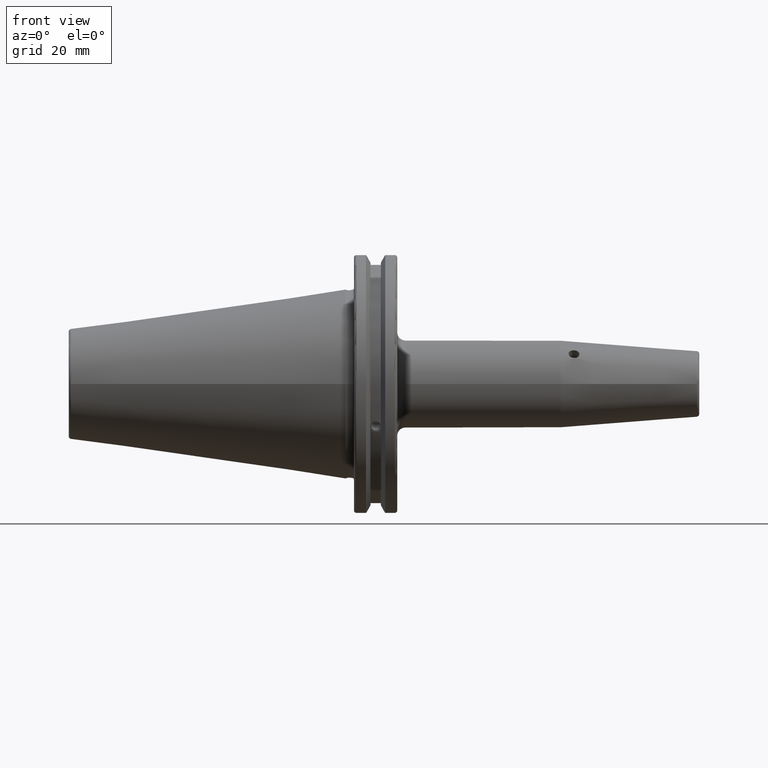
[diagram: clean part render]
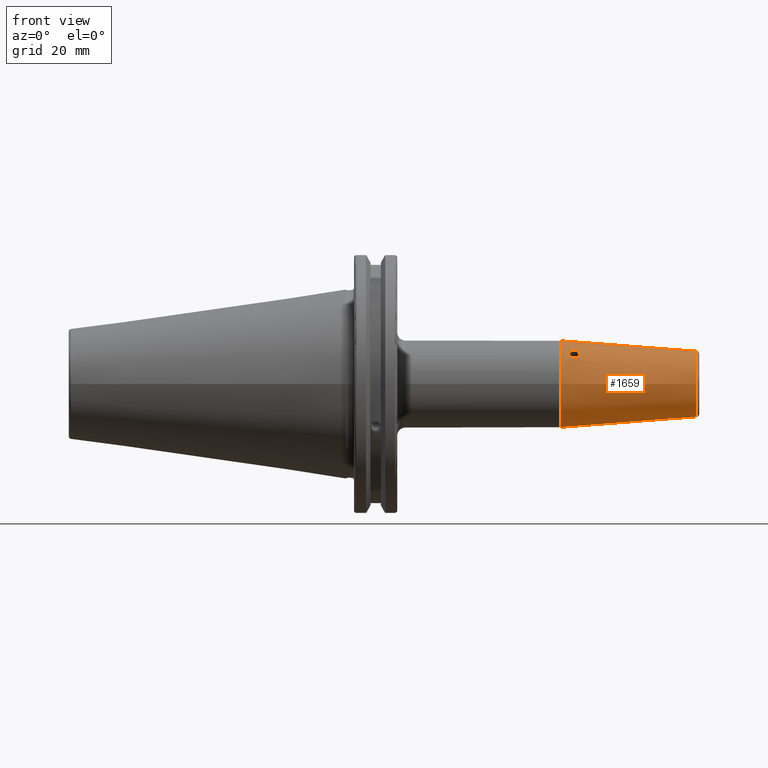
[diagram: same view with one face highlighted and labeled with its STEP entity id]
A machine part, front view. The second image highlights one B-rep face of the part: STEP entity #1659.
In plain terms, the highlighted conical surface has half-angle 4.5 deg.
Its self-contained STEP definition (entity closure, byte-faithful):
#34=FACE_BOUND('',#309,.T.);
#112=CIRCLE('',#1789,12.0725268420749);
#113=CIRCLE('',#1790,12.0725268420749);
#114=CIRCLE('',#1792,16.);
#185=CONICAL_SURFACE('',#1791,14.,0.0785398163397448);
#210=FACE_OUTER_BOUND('',#308,.T.);
#308=EDGE_LOOP('',(#1170,#1171,#1172,#1173,#1174));
#309=EDGE_LOOP('',(#1175,#1176));
#427=B_SPLINE_CURVE_WITH_KNOTS('',3,(#2637,#2638,#2639,#2640,#2641,#2642,
#2643,#2644,#2645,#2646),.UNSPECIFIED.,.F.,.F.,(4,2,2,2,4),(0.,0.0748674618662603,
0.149734923732521,0.224614840567836,0.299494757403151),.UNSPECIFIED.);
#428=B_SPLINE_CURVE_WITH_KNOTS('',3,(#2647,#2648,#2649,#2650,#2651,#2652,
#2653,#2654,#2655,#2656,#2657,#2658,#2659,#2660,#2661,#2662,#2663,#2664,
#2665,#2666,#2667,#2668,#2669,#2670,#2671,#2672),.UNSPECIFIED.,.F.,.F.,
(4,2,2,2,2,2,2,2,2,2,2,2,4),(0.299494757403151,0.374374674238466,0.449254591073782,
0.524122052940041,0.598989514806301,0.675303827779074,0.751618140751848,
0.827729436244574,0.903840731737301,0.979952027230028,1.05606332272276,
1.13237763569553,1.2086919486683),.UNSPECIFIED.);
#476=LINE('',#2697,#578);
#578=VECTOR('',#2009,14.);
#693=VERTEX_POINT('',#2635);
#694=VERTEX_POINT('',#2636);
#700=VERTEX_POINT('',#2690);
#701=VERTEX_POINT('',#2692);
#702=VERTEX_POINT('',#2696);
#872=EDGE_CURVE('',#693,#694,#427,.T.);
#873=EDGE_CURVE('',#694,#693,#428,.T.);
#883=EDGE_CURVE('',#700,#701,#112,.T.);
#884=EDGE_CURVE('',#701,#700,#113,.T.);
#885=EDGE_CURVE('',#701,#702,#476,.T.);
#886=EDGE_CURVE('',#702,#702,#114,.T.);
#1170=ORIENTED_EDGE('',*,*,#884,.F.);
#1171=ORIENTED_EDGE('',*,*,#885,.T.);
#1172=ORIENTED_EDGE('',*,*,#886,.T.);
#1173=ORIENTED_EDGE('',*,*,#885,.F.);
#1174=ORIENTED_EDGE('',*,*,#883,.F.);
#1175=ORIENTED_EDGE('',*,*,#872,.T.);
#1176=ORIENTED_EDGE('',*,*,#873,.T.);
#1659=ADVANCED_FACE('',(#210,#34),#185,.T.);
#1789=AXIS2_PLACEMENT_3D('',#2693,#2003,#2004);
#1790=AXIS2_PLACEMENT_3D('',#2694,#2005,#2006);
#1791=AXIS2_PLACEMENT_3D('',#2695,#2007,#2008);
#1792=AXIS2_PLACEMENT_3D('',#2698,#2010,#2011);
#2003=DIRECTION('center_axis',(1.,0.,0.));
#2004=DIRECTION('ref_axis',(0.,-1.,3.06161699786838E-17));
#2005=DIRECTION('center_axis',(1.,0.,0.));
#2006=DIRECTION('ref_axis',(0.,-1.,3.06161699786838E-17));
#2007=DIRECTION('center_axis',(-1.,0.,0.));
#2008=DIRECTION('ref_axis',(0.,1.,0.));
#2009=DIRECTION('',(-0.996917333733128,-0.0784590957278449,-9.60846804471011E-18));
#2010=DIRECTION('center_axis',(1.,0.,0.));
#2011=DIRECTION('ref_axis',(0.,0.,-1.));
#2635=CARTESIAN_POINT('',(84.0201537269017,-9.53903033601556,12.367313853378));
#2636=CARTESIAN_POINT('',(86.,-10.9339038400509,10.9339038400509));
#2637=CARTESIAN_POINT('Ctrl Pts',(84.0201537269017,-9.53903033601556,12.367313853378));
#2638=CARTESIAN_POINT('Ctrl Pts',(84.2689426284586,-9.52707189096268,12.3518097782301));
#2639=CARTESIAN_POINT('Ctrl Pts',(84.534382625529,-9.55385666938077,12.3050854651883));
#2640=CARTESIAN_POINT('Ctrl Pts',(85.0224847760377,-9.68972517788113,12.1492859372061));
#2641=CARTESIAN_POINT('Ctrl Pts',(85.2451335499222,-9.7985681818265,12.0399590698605));
#2642=CARTESIAN_POINT('Ctrl Pts',(85.5964332206227,-10.0525139804134,11.7924540985275));
#2643=CARTESIAN_POINT('Ctrl Pts',(85.7486333216607,-10.2145816131567,11.6376583005966));
#2644=CARTESIAN_POINT('Ctrl Pts',(85.950417994528,-10.5671484545692,11.2967535179709));
#2645=CARTESIAN_POINT('Ctrl Pts',(86.,-10.7574101834878,11.110397496614));
#2646=CARTESIAN_POINT('Ctrl Pts',(86.,-10.9339038400509,10.9339038400509));
#2647=CARTESIAN_POINT('Ctrl Pts',(86.,-10.9339038400509,10.9339038400509));
#2648=CARTESIAN_POINT('Ctrl Pts',(86.,-11.110397496614,10.7574101834878));
#2649=CARTESIAN_POINT('Ctrl Pts',(85.950417994528,-11.2967535179709,10.5671484545692));
#2650=CARTESIAN_POINT('Ctrl Pts',(85.7486333216607,-11.6376583005966,10.2145816131567));
#2651=CARTESIAN_POINT('Ctrl Pts',(85.5964332206227,-11.7924540985275,10.0525139804134));
#2652=CARTESIAN_POINT('Ctrl Pts',(85.2451335499222,-12.0399590698605,9.79856818182651));
#2653=CARTESIAN_POINT('Ctrl Pts',(85.0224847760377,-12.1492859372061,9.68972517788113));
#2654=CARTESIAN_POINT('Ctrl Pts',(84.534382625529,-12.3050854651883,9.55385666938077));
#2655=CARTESIAN_POINT('Ctrl Pts',(84.2689426284586,-12.3518097782301,9.52707189096268));
#2656=CARTESIAN_POINT('Ctrl Pts',(83.7665568555201,-12.3831175525244,9.55121988399388));
#2657=CARTESIAN_POINT('Ctrl Pts',(83.4963664701261,-12.3686524410359,9.60521638238079));
#2658=CARTESIAN_POINT('Ctrl Pts',(82.9993269719371,-12.270839084647,9.79269870491091));
#2659=CARTESIAN_POINT('Ctrl Pts',(82.7724210459759,-12.1872570327809,9.92591175183339));
#2660=CARTESIAN_POINT('Ctrl Pts',(82.4139162460078,-11.9790982064529,10.2196717662068));
#2661=CARTESIAN_POINT('Ctrl Pts',(82.2581987023632,-11.8406699833833,10.3997410073626));
#2662=CARTESIAN_POINT('Ctrl Pts',(82.0512223750684,-11.5192096610287,10.7785670859447));
#2663=CARTESIAN_POINT('Ctrl Pts',(82.,-11.3359019262901,10.9771098385048));
#2664=CARTESIAN_POINT('Ctrl Pts',(82.,-10.9771098385048,11.3359019262901));
#2665=CARTESIAN_POINT('Ctrl Pts',(82.0512223750684,-10.7785670859447,11.5192096610287));
#2666=CARTESIAN_POINT('Ctrl Pts',(82.2581987023632,-10.3997410073626,11.8406699833833));
#2667=CARTESIAN_POINT('Ctrl Pts',(82.4139162460078,-10.2196717662068,11.9790982064529));
#2668=CARTESIAN_POINT('Ctrl Pts',(82.7724210459759,-9.92591175183338,12.1872570327809));
#2669=CARTESIAN_POINT('Ctrl Pts',(82.9993269719371,-9.79269870491092,12.270839084647));
#2670=CARTESIAN_POINT('Ctrl Pts',(83.4963664701261,-9.60521638238079,12.3686524410359));
#2671=CARTESIAN_POINT('Ctrl Pts',(83.76655685552,-9.55121988399388,12.3831175525244));
#2672=CARTESIAN_POINT('Ctrl Pts',(84.0201537269017,-9.53903033601556,12.367313853378));
#2690=CARTESIAN_POINT('',(129.078459095728,-1.47845813547676E-15,12.0725268420749));
#2692=CARTESIAN_POINT('',(129.078459095728,-12.0725268420749,-1.47845813547676E-15));
#2693=CARTESIAN_POINT('Origin',(129.078459095728,0.,-1.84807266934594E-15));
#2694=CARTESIAN_POINT('Origin',(129.078459095728,0.,-1.84807266934594E-15));
#2695=CARTESIAN_POINT('Origin',(104.587590527651,0.,0.));
#2696=CARTESIAN_POINT('',(79.1751810553012,-16.,-1.95943487863577E-15));
#2697=CARTESIAN_POINT('',(104.587590527651,-14.,-1.71450551880629E-15));
#2698=CARTESIAN_POINT('Origin',(79.1751810553012,0.,0.));